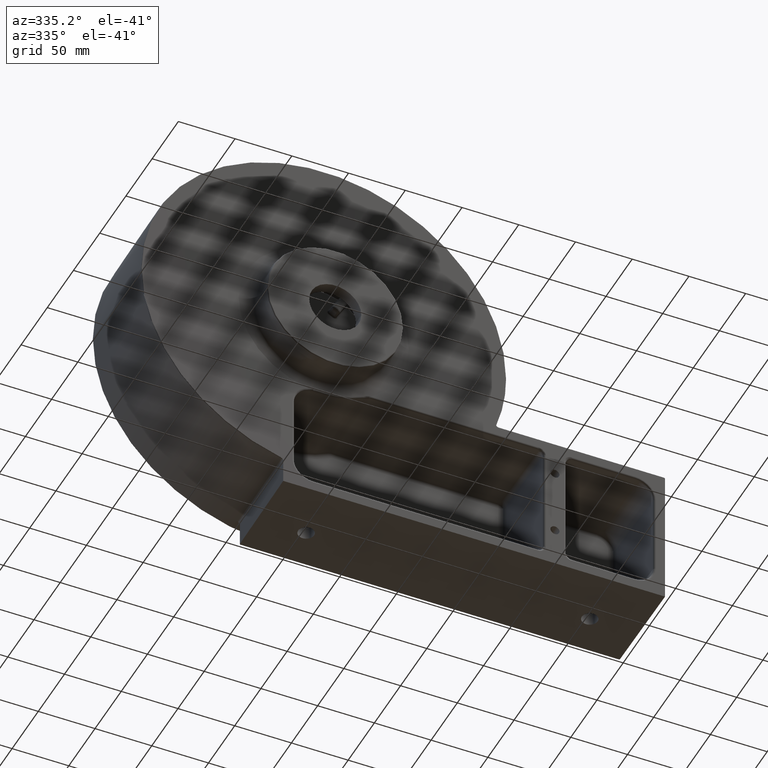
[diagram: clean part render]
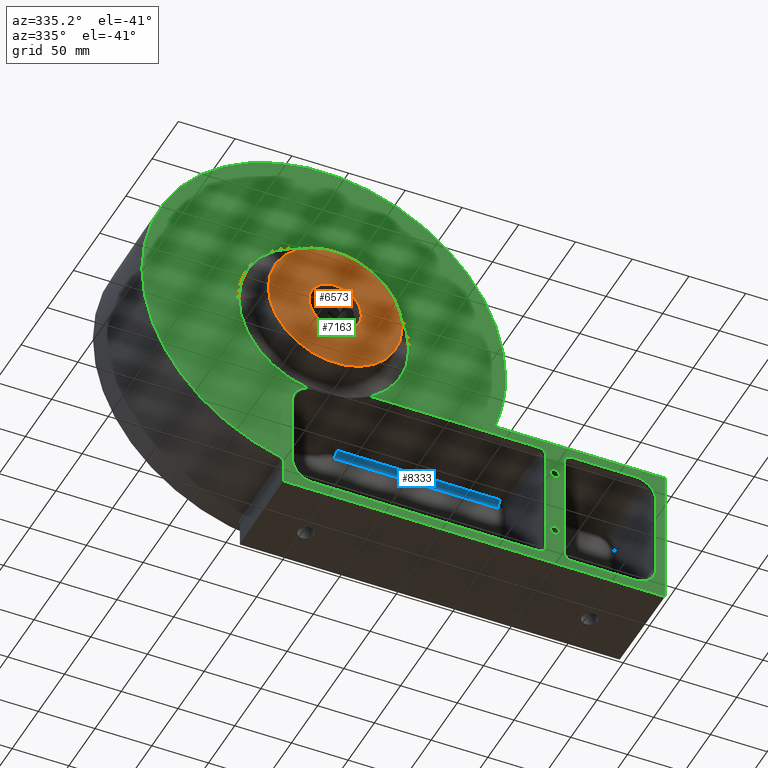
[diagram: same view with three faces highlighted in distinct colors, each labeled with its STEP entity id]
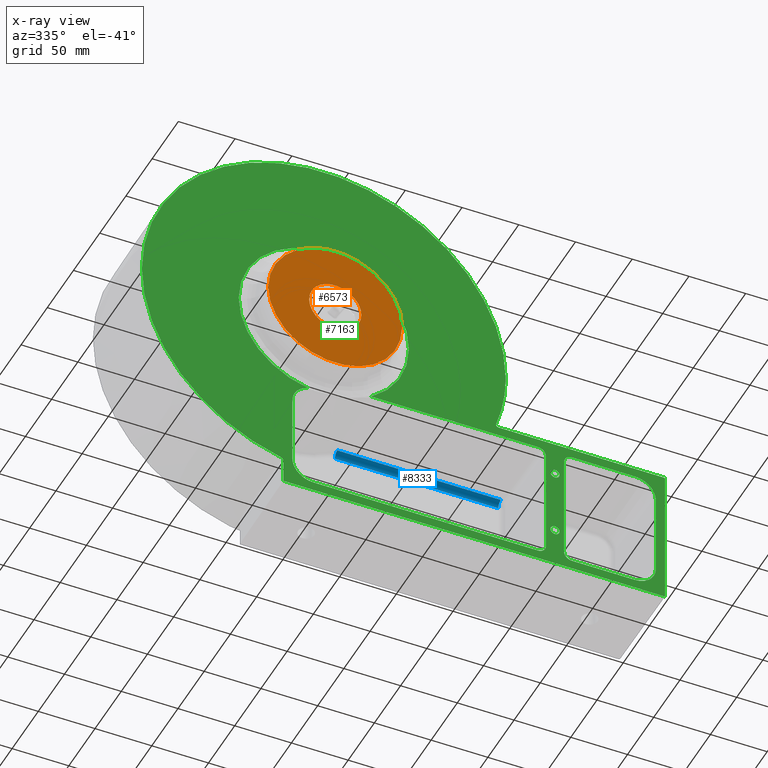
[diagram: x-ray of the same camera — body ghosted, the three highlighted faces saturated]
A machine part, auxiliary view with three faces highlighted in distinct colors.
The next image is the same camera in x-ray (body ghosted, the three faces saturated) — at least one of them is partly hidden behind the body in this view.
Their STEP definitions:

[orange] entity #6573 — the highlighted planar face has unit normal (0, -1, 0).
#44 = PLANE ( 'NONE',  #1723 ) ;
#246 = AXIS2_PLACEMENT_3D ( 'NONE', #4752, #4743, #4733 ) ;
#455 = AXIS2_PLACEMENT_3D ( 'NONE', #3622, #6672, #9249 ) ;
#679 = VERTEX_POINT ( 'NONE', #8006 ) ;
#762 = AXIS2_PLACEMENT_3D ( 'NONE', #7761, #7740, #7731 ) ;
#1368 = CARTESIAN_POINT ( 'NONE',  ( 23.00000000000001421, 2.793634364560912921E-15, 2.816687638038912352E-15 ) ) ;
#1396 = VERTEX_POINT ( 'NONE', #1368 ) ;
#1516 = CIRCLE ( 'NONE', #762, 23.00000000000000000 ) ;
#1674 = EDGE_CURVE ( 'NONE', #5301, #679, #7813, .T. ) ;
#1723 = AXIS2_PLACEMENT_3D ( 'NONE', #3408, #6464, #9089 ) ;
#2987 = EDGE_CURVE ( 'NONE', #1396, #3332, #1516, .T. ) ;
#3266 = DIRECTION ( 'NONE',  ( -1.000000000000000000, -1.214623636765614121E-16, 0.0000000000000000000 ) ) ;
#3269 = DIRECTION ( 'NONE',  ( -1.214623636765614367E-16, 1.000000000000000000, -0.0000000000000000000 ) ) ;
#3276 = CARTESIAN_POINT ( 'NONE',  ( 1.425374463786146781E-14, 1.387778780781445676E-14, 0.0000000000000000000 ) ) ;
#3332 = VERTEX_POINT ( 'NONE', #6638 ) ;
#3408 = CARTESIAN_POINT ( 'NONE',  ( -58.99999999999998579, -6.684395046983998997E-16, 0.0000000000000000000 ) ) ;
#3622 = CARTESIAN_POINT ( 'NONE',  ( 1.425374463786146781E-14, 0.0000000000000000000, 0.0000000000000000000 ) ) ;
#4156 = FACE_BOUND ( 'NONE', #9476, .T. ) ;
#4321 = EDGE_CURVE ( 'NONE', #679, #5301, #4538, .T. ) ;
#4538 = CIRCLE ( 'NONE', #8579, 59.00000000000000000 ) ;
#4733 = DIRECTION ( 'NONE',  ( -1.000000000000000000, -1.214623636765614121E-16, 0.0000000000000000000 ) ) ;
#4743 = DIRECTION ( 'NONE',  ( -1.214623636765614367E-16, 1.000000000000000000, -0.0000000000000000000 ) ) ;
#4752 = CARTESIAN_POINT ( 'NONE',  ( 1.425374463786146781E-14, 1.387778780781445676E-14, 0.0000000000000000000 ) ) ;
#4761 = ORIENTED_EDGE ( 'NONE', *, *, #4321, .F. ) ;
#4832 = ORIENTED_EDGE ( 'NONE', *, *, #1674, .F. ) ;
#4840 = ORIENTED_EDGE ( 'NONE', *, *, #2987, .T. ) ;
#4971 = ORIENTED_EDGE ( 'NONE', *, *, #5424, .T. ) ;
#5071 = CIRCLE ( 'NONE', #455, 23.00000000000000000 ) ;
#5301 = VERTEX_POINT ( 'NONE', #8573 ) ;
#5424 = EDGE_CURVE ( 'NONE', #3332, #1396, #5071, .T. ) ;
#6464 = DIRECTION ( 'NONE',  ( 1.214623636765614367E-16, -1.000000000000000000, 0.0000000000000000000 ) ) ;
#6573 = ADVANCED_FACE ( 'NONE', ( #4156, #7184 ), #44, .T. ) ;
#6638 = CARTESIAN_POINT ( 'NONE',  ( -22.99999999999998579, -2.793634364560912921E-15, 0.0000000000000000000 ) ) ;
#6672 = DIRECTION ( 'NONE',  ( -1.214623636765614367E-16, 1.000000000000000000, -0.0000000000000000000 ) ) ;
#7041 = EDGE_LOOP ( 'NONE', ( #4832, #4761 ) ) ;
#7184 = FACE_OUTER_BOUND ( 'NONE', #7041, .T. ) ;
#7731 = DIRECTION ( 'NONE',  ( -1.000000000000000000, -1.214623636765614367E-16, 0.0000000000000000000 ) ) ;
#7740 = DIRECTION ( 'NONE',  ( -1.214623636765614367E-16, 1.000000000000000000, -0.0000000000000000000 ) ) ;
#7761 = CARTESIAN_POINT ( 'NONE',  ( 1.425374463786146781E-14, 0.0000000000000000000, 0.0000000000000000000 ) ) ;
#7813 = CIRCLE ( 'NONE', #246, 59.00000000000000000 ) ;
#8006 = CARTESIAN_POINT ( 'NONE',  ( 59.00000000000001421, 2.104406726473158229E-14, 7.286648454926750781E-15 ) ) ;
#8573 = CARTESIAN_POINT ( 'NONE',  ( -58.99999999999998579, 6.711508350897332014E-15, 0.0000000000000000000 ) ) ;
#8579 = AXIS2_PLACEMENT_3D ( 'NONE', #3276, #3269, #3266 ) ;
#9089 = DIRECTION ( 'NONE',  ( 1.000000000000000000, 1.214623636765614367E-16, 0.0000000000000000000 ) ) ;
#9249 = DIRECTION ( 'NONE',  ( -1.000000000000000000, -1.214623636765614367E-16, 0.0000000000000000000 ) ) ;
#9476 = EDGE_LOOP ( 'NONE', ( #4971, #4840 ) ) ;

[blue] entity #8333 — the highlighted cylindrical surface (edge-blend (fillet) strip) has radius 5 mm, axis along (1, 0, 0).
#23 = CARTESIAN_POINT ( 'NONE',  ( -2.280048247810273157E-15, 88.79939097275266136, -71.01438694537539220 ) ) ;
#828 = AXIS2_PLACEMENT_3D ( 'NONE', #5356, #8201, #1322 ) ;
#983 = VERTEX_POINT ( 'NONE', #7218 ) ;
#1010 = CIRCLE ( 'NONE', #2427, 5.000000000000004441 ) ;
#1217 = VERTEX_POINT ( 'NONE', #6702 ) ;
#1322 = DIRECTION ( 'NONE',  ( 0.0000000000000000000, 1.000000000000000000, 0.0000000000000000000 ) ) ;
#1416 = VERTEX_POINT ( 'NONE', #5930 ) ;
#1468 = DIRECTION ( 'NONE',  ( -1.000000000000000000, -1.242786967863980845E-16, -1.199255022777854802E-16 ) ) ;
#2427 = AXIS2_PLACEMENT_3D ( 'NONE', #3875, #8978, #2472 ) ;
#2472 = DIRECTION ( 'NONE',  ( -6.938893903907222067E-15, 0.0000000000000000000, 1.000000000000000000 ) ) ;
#3381 = DIRECTION ( 'NONE',  ( 1.000000000000000000, 1.242786967863980845E-16, 1.199255022777854802E-16 ) ) ;
#3441 = DIRECTION ( 'NONE',  ( 1.000000000000000000, 1.242786967863980845E-16, 1.199255022777854802E-16 ) ) ;
#3472 = LINE ( 'NONE', #3481, #9553 ) ;
#3481 = CARTESIAN_POINT ( 'NONE',  ( 274.2417837622144816, 88.93027571429206546, -66.01610032049757137 ) ) ;
#3875 = CARTESIAN_POINT ( 'NONE',  ( 43.01581697574827245, 88.79939097275266136, -71.01438694537537799 ) ) ;
#4038 = VERTEX_POINT ( 'NONE', #4468 ) ;
#4135 = FACE_OUTER_BOUND ( 'NONE', #7939, .T. ) ;
#4298 = EDGE_CURVE ( 'NONE', #1416, #4038, #3472, .T. ) ;
#4468 = CARTESIAN_POINT ( 'NONE',  ( 186.9856130546246220, 88.93027571429205125, -66.01610032049758559 ) ) ;
#4617 = AXIS2_PLACEMENT_3D ( 'NONE', #23, #3381, #6441 ) ;
#5356 = CARTESIAN_POINT ( 'NONE',  ( 186.9856130546246220, 88.79939097275268978, -71.01438694537536378 ) ) ;
#5437 = CIRCLE ( 'NONE', #828, 5.000000000000004441 ) ;
#5485 = LINE ( 'NONE', #8310, #9482 ) ;
#5930 = CARTESIAN_POINT ( 'NONE',  ( 43.01581697574823693, 88.93027571429202283, -66.01610032049758559 ) ) ;
#6319 = EDGE_CURVE ( 'NONE', #1416, #983, #1010, .T. ) ;
#6381 = ORIENTED_EDGE ( 'NONE', *, *, #9444, .F. ) ;
#6394 = ORIENTED_EDGE ( 'NONE', *, *, #6972, .T. ) ;
#6426 = ORIENTED_EDGE ( 'NONE', *, *, #4298, .F. ) ;
#6441 = DIRECTION ( 'NONE',  ( -1.242786967863979859E-16, 1.000000000000000000, 0.0000000000000000000 ) ) ;
#6459 = ORIENTED_EDGE ( 'NONE', *, *, #6319, .T. ) ;
#6702 = CARTESIAN_POINT ( 'NONE',  ( 186.9856130546245936, 93.79939097275267557, -71.01438694537537799 ) ) ;
#6972 = EDGE_CURVE ( 'NONE', #1217, #4038, #5437, .T. ) ;
#7169 = CYLINDRICAL_SURFACE ( 'NONE', #4617, 5.000000000000004441 ) ;
#7218 = CARTESIAN_POINT ( 'NONE',  ( 43.01581697574827245, 93.79939097275266136, -71.01438694537539220 ) ) ;
#7939 = EDGE_LOOP ( 'NONE', ( #6381, #6394, #6426, #6459 ) ) ;
#8201 = DIRECTION ( 'NONE',  ( 1.000000000000000000, 1.242786967863980845E-16, 1.199255022777854802E-16 ) ) ;
#8310 = CARTESIAN_POINT ( 'NONE',  ( 43.01581697574818719, 93.79939097275266136, -71.01438694537539220 ) ) ;
#8333 = ADVANCED_FACE ( 'NONE', ( #4135 ), #7169, .F. ) ;
#8978 = DIRECTION ( 'NONE',  ( -1.000000000000000000, 0.0000000000000000000, -6.941272504632407803E-15 ) ) ;
#9444 = EDGE_CURVE ( 'NONE', #1217, #983, #5485, .T. ) ;
#9482 = VECTOR ( 'NONE', #1468, 1000.000000000000000 ) ;
#9553 = VECTOR ( 'NONE', #3441, 1000.000000000000000 ) ;

[green] entity #7163 — the highlighted planar face has unit normal (-0, 1, 0).
#20 = CARTESIAN_POINT ( 'NONE',  ( 213.8427292082037354, 21.79939097275268622, -169.8990545540107178 ) ) ;
#45 = AXIS2_PLACEMENT_3D ( 'NONE', #7825, #7821, #7809 ) ;
#87 = CARTESIAN_POINT ( 'NONE',  ( -27.69009750405787429, 21.79939097275265780, -1.549505232012129051E-15 ) ) ;
#119 = AXIS2_PLACEMENT_3D ( 'NONE', #6536, #1875, #5076 ) ;
#215 = EDGE_CURVE ( 'NONE', #8840, #9178, #802, .T. ) ;
#285 =( BOUNDED_CURVE ( )  B_SPLINE_CURVE ( 3, ( #861, #4131, #7166, #20 ),
 .UNSPECIFIED., .F., .T. ) 
 B_SPLINE_CURVE_WITH_KNOTS ( ( 4, 4 ),
 ( 5.498129760120304965, 6.283185307179586232 ),
 .UNSPECIFIED. ) 
 CURVE ( )  GEOMETRIC_REPRESENTATION_ITEM ( )  RATIONAL_B_SPLINE_CURVE ( ( 1.000000000000000000, 0.9492967171685287031, 0.9492967171685287031, 1.000000000000000000 ) ) 
 REPRESENTATION_ITEM ( '' )  );
#294 = EDGE_CURVE ( 'NONE', #5562, #725, #5063, .T. ) ;
#313 = CARTESIAN_POINT ( 'NONE',  ( 211.7934700203711316, 21.79939097275268978, -68.97768550218000883 ) ) ;
#424 = EDGE_CURVE ( 'NONE', #483, #1905, #8390, .T. ) ;
#429 = VECTOR ( 'NONE', #5892, 1000.000000000000000 ) ;
#473 = EDGE_CURVE ( 'NONE', #5543, #8919, #8375, .T. ) ;
#483 = VERTEX_POINT ( 'NONE', #8352 ) ;
#564 = CARTESIAN_POINT ( 'NONE',  ( -35.74178376221449582, 21.79939097275265780, -158.3329186203524159 ) ) ;
#720 = EDGE_CURVE ( 'NONE', #5512, #9550, #5982, .T. ) ;
#725 = VERTEX_POINT ( 'NONE', #7807 ) ;
#744 = VERTEX_POINT ( 'NONE', #7785 ) ;
#802 =( BOUNDED_CURVE ( )  B_SPLINE_CURVE ( 3, ( #9424, #9410, #9404, #9402 ),
 .UNSPECIFIED., .F., .T. ) 
 B_SPLINE_CURVE_WITH_KNOTS ( ( 4, 4 ),
 ( 5.497825219993087487, 7.068545394366056556 ),
 .UNSPECIFIED. ) 
 CURVE ( )  GEOMETRIC_REPRESENTATION_ITEM ( )  RATIONAL_B_SPLINE_CURVE ( ( 1.000000000000000000, 0.8047558030806230001, 0.8047558030806230001, 1.000000000000000000 ) ) 
 REPRESENTATION_ITEM ( '' )  );
#861 = CARTESIAN_POINT ( 'NONE',  ( 218.7910712952000551, 21.79939097275268978, -171.9483137418432932 ) ) ;
#872 = CARTESIAN_POINT ( 'NONE',  ( 1.160593908360143360E-14, 21.79939097275267201, 0.0000000000000000000 ) ) ;
#919 = CARTESIAN_POINT ( 'NONE',  ( -2.709199900830871636E-15, 21.79939097275266136, 0.0000000000000000000 ) ) ;
#976 = VERTEX_POINT ( 'NONE', #7262 ) ;
#1061 = CARTESIAN_POINT ( 'NONE',  ( 211.7934700203711600, 21.79939097275268978, -164.9507124670143980 ) ) ;
#1071 = VERTEX_POINT ( 'NONE', #7027 ) ;
#1118 = EDGE_CURVE ( 'NONE', #5493, #5208, #7958, .T. ) ;
#1140 = AXIS2_PLACEMENT_3D ( 'NONE', #6490, #6482, #6477 ) ;
#1173 = EDGE_CURVE ( 'NONE', #1464, #2636, #5469, .T. ) ;
#1229 =( BOUNDED_CURVE ( )  B_SPLINE_CURVE ( 3, ( #2186, #2181, #2178, #2165 ),
 .UNSPECIFIED., .F., .T. ) 
 B_SPLINE_CURVE_WITH_KNOTS ( ( 4, 4 ),
 ( 5.498129760120304077, 6.283185307179586232 ),
 .UNSPECIFIED. ) 
 CURVE ( )  GEOMETRIC_REPRESENTATION_ITEM ( )  RATIONAL_B_SPLINE_CURVE ( ( 1.000000000000000000, 0.9492967171685284811, 0.9492967171685284811, 1.000000000000000000 ) ) 
 REPRESENTATION_ITEM ( '' )  );
#1268 = DIRECTION ( 'NONE',  ( 0.0000000000000000000, 0.0000000000000000000, -1.000000000000000000 ) ) ;
#1419 = CARTESIAN_POINT ( 'NONE',  ( -27.69009750405786718, 21.79939097275265780, -153.5000000000000000 ) ) ;
#1435 = EDGE_CURVE ( 'NONE', #8919, #8840, #5901, .T. ) ;
#1448 = EDGE_CURVE ( 'NONE', #725, #744, #5890, .T. ) ;
#1461 = EDGE_CURVE ( 'NONE', #7784, #4238, #8586, .T. ) ;
#1464 = VERTEX_POINT ( 'NONE', #5845 ) ;
#1579 = CARTESIAN_POINT ( 'NONE',  ( 195.6900975040578601, 21.79939097275268622, -69.30750377077103508 ) ) ;
#1671 = CIRCLE ( 'NONE', #6141, 4.000000000000003553 ) ;
#1689 = DIRECTION ( 'NONE',  ( 7.631260653810491588E-16, 9.484031288928840776E-32, -1.000000000000000000 ) ) ;
#1719 = CIRCLE ( 'NONE', #7402, 160.3160192545639120 ) ;
#1731 = CARTESIAN_POINT ( 'NONE',  ( 211.7934700203711031, 21.79939097275268978, -65.20782233517792292 ) ) ;
#1764 = FACE_OUTER_BOUND ( 'NONE', #4074, .T. ) ;
#1787 = DIRECTION ( 'NONE',  ( 1.242786967863980845E-16, -1.000000000000000000, 0.0000000000000000000 ) ) ;
#1797 = DIRECTION ( 'NONE',  ( -1.000000000000000000, -1.387778780781444936E-16, 0.0000000000000000000 ) ) ;
#1824 = VERTEX_POINT ( 'NONE', #4066 ) ;
#1863 = CIRCLE ( 'NONE', #6294, 75.00000000000004263 ) ;
#1875 = DIRECTION ( 'NONE',  ( -1.214623636765614367E-16, 1.000000000000000000, -0.0000000000000000000 ) ) ;
#1905 = VERTEX_POINT ( 'NONE', #3885 ) ;
#1926 = AXIS2_PLACEMENT_3D ( 'NONE', #8531, #1787, #4987 ) ;
#1945 = CARTESIAN_POINT ( 'NONE',  ( 195.6900975040578601, 21.79939097275268622, -69.30750377077103508 ) ) ;
#1949 = CARTESIAN_POINT ( 'NONE',  ( 195.6900975040579169, 21.79939097275268978, -67.42639654655779680 ) ) ;
#1952 = CIRCLE ( 'NONE', #7583, 75.00000000000004263 ) ;
#1958 = CARTESIAN_POINT ( 'NONE',  ( 194.9705264957627833, 21.79939097275268978, -65.68884986331221398 ) ) ;
#1960 = CARTESIAN_POINT ( 'NONE',  ( 193.6408383162252846, 21.79939097275268622, -64.35916168377472957 ) ) ;
#2065 = VECTOR ( 'NONE', #8365, 1000.000000000000000 ) ;
#2165 = CARTESIAN_POINT ( 'NONE',  ( 193.6408383162252846, 21.79939097275268622, -64.35916168377472957 ) ) ;
#2178 = CARTESIAN_POINT ( 'NONE',  ( 192.3111501366877860, 21.79939097275268622, -63.02947350423725226 ) ) ;
#2179 = CARTESIAN_POINT ( 'NONE',  ( 75.00000000000005684, 21.79939097275265780, 9.184850993605153466E-15 ) ) ;
#2181 = CARTESIAN_POINT ( 'NONE',  ( 190.5736034534422458, 21.79939097275268622, -62.30990249594214703 ) ) ;
#2186 = CARTESIAN_POINT ( 'NONE',  ( 188.6924962292289649, 21.79939097275268622, -62.30990249594212571 ) ) ;
#2206 = DIRECTION ( 'NONE',  ( 1.242786967863980845E-16, -1.000000000000000000, 0.0000000000000000000 ) ) ;
#2260 = EDGE_CURVE ( 'NONE', #8850, #976, #1863, .T. ) ;
#2280 = ORIENTED_EDGE ( 'NONE', *, *, #9511, .T. ) ;
#2290 = AXIS2_PLACEMENT_3D ( 'NONE', #3679, #6720, #9286 ) ;
#2304 = CARTESIAN_POINT ( 'NONE',  ( 292.6900975040578601, 21.79939097275269688, -153.4999999999999432 ) ) ;
#2389 = ORIENTED_EDGE ( 'NONE', *, *, #6847, .T. ) ;
#2391 = CARTESIAN_POINT ( 'NONE',  ( -160.3160192545639120, 21.79939097275265070, 0.0000000000000000000 ) ) ;
#2402 = ORIENTED_EDGE ( 'NONE', *, *, #2953, .T. ) ;
#2403 = EDGE_CURVE ( 'NONE', #3374, #1824, #1229, .T. ) ;
#2444 = ORIENTED_EDGE ( 'NONE', *, *, #8836, .T. ) ;
#2449 = CARTESIAN_POINT ( 'NONE',  ( 207.7417837622144816, 21.79939097275268622, -84.99999999999998579 ) ) ;
#2461 = CIRCLE ( 'NONE', #8032, 18.44831374184336781 ) ;
#2463 = DIRECTION ( 'NONE',  ( 1.000000000000000000, 0.0000000000000000000, 0.0000000000000000000 ) ) ;
#2468 = DIRECTION ( 'NONE',  ( 1.242786967863980845E-16, -1.000000000000000000, 0.0000000000000000000 ) ) ;
#2475 = ORIENTED_EDGE ( 'NONE', *, *, #6867, .T. ) ;
#2476 = CARTESIAN_POINT ( 'NONE',  ( 203.7417837622144816, 21.79939097275268622, -84.99999999999998579 ) ) ;
#2502 = CARTESIAN_POINT ( 'NONE',  ( -9.241783762214502929, 21.79939097275266136, -171.9483137418433500 ) ) ;
#2521 = VERTEX_POINT ( 'NONE', #1579 ) ;
#2542 = LINE ( 'NONE', #5686, #4902 ) ;
#2589 = FACE_BOUND ( 'NONE', #5177, .T. ) ;
#2616 = ORIENTED_EDGE ( 'NONE', *, *, #8852, .F. ) ;
#2636 = VERTEX_POINT ( 'NONE', #564 ) ;
#2642 = ORIENTED_EDGE ( 'NONE', *, *, #720, .F. ) ;
#2643 = DIRECTION ( 'NONE',  ( -1.000000000000000000, -1.880630934893751758E-16, 0.0000000000000000000 ) ) ;
#2650 = ORIENTED_EDGE ( 'NONE', *, *, #6142, .T. ) ;
#2673 = CARTESIAN_POINT ( 'NONE',  ( 195.6900975040578032, 21.79939097275268267, -169.0503939026074818 ) ) ;
#2675 = ORIENTED_EDGE ( 'NONE', *, *, #3495, .F. ) ;
#2680 = CARTESIAN_POINT ( 'NONE',  ( 207.7417837622145100, 21.79939097275268622, -145.0000000000000000 ) ) ;
#2697 = DIRECTION ( 'NONE',  ( -1.000000000000000000, -1.242786967863980845E-16, -1.925929944387235853E-34 ) ) ;
#2819 = DIRECTION ( 'NONE',  ( 1.000000000000000000, 1.242786967863980845E-16, 1.199255022777854802E-16 ) ) ;
#2859 = ORIENTED_EDGE ( 'NONE', *, *, #4650, .F. ) ;
#2925 = DIRECTION ( 'NONE',  ( -1.000000000000000000, -1.387778780781444936E-16, 0.0000000000000000000 ) ) ;
#2929 = DIRECTION ( 'NONE',  ( -1.214623636765614367E-16, 1.000000000000000000, -0.0000000000000000000 ) ) ;
#2938 = CARTESIAN_POINT ( 'NONE',  ( 1.160593908360143518E-14, 21.79939097275264359, 0.0000000000000000000 ) ) ;
#2945 = CARTESIAN_POINT ( 'NONE',  ( 213.8427292082037354, 21.79939097275268622, -169.8990545540107178 ) ) ;
#2953 = EDGE_CURVE ( 'NONE', #3287, #6416, #7056, .T. ) ;
#2997 = ORIENTED_EDGE ( 'NONE', *, *, #7144, .T. ) ;
#3104 = VERTEX_POINT ( 'NONE', #7552 ) ;
#3155 = VERTEX_POINT ( 'NONE', #7416 ) ;
#3160 = DIRECTION ( 'NONE',  ( -1.000000000000000000, -1.387778780781444936E-16, 0.0000000000000000000 ) ) ;
#3205 = ORIENTED_EDGE ( 'NONE', *, *, #1448, .T. ) ;
#3218 = VECTOR ( 'NONE', #3256, 1000.000000000000000 ) ;
#3256 = DIRECTION ( 'NONE',  ( 1.000000000000000000, 1.242786967863980845E-16, 1.199255022777854802E-16 ) ) ;
#3257 = CARTESIAN_POINT ( 'NONE',  ( 4.763346452874829460E-15, 21.79939097275266136, -62.30990249594214703 ) ) ;
#3263 = LINE ( 'NONE', #3257, #3218 ) ;
#3277 = VECTOR ( 'NONE', #3651, 1000.000000000000000 ) ;
#3287 = VERTEX_POINT ( 'NONE', #6753 ) ;
#3304 = ORIENTED_EDGE ( 'NONE', *, *, #294, .T. ) ;
#3314 = EDGE_LOOP ( 'NONE', ( #2475, #2444, #2389, #2402, #2280, #3304, #3205, #4966, #5032 ) ) ;
#3374 = VERTEX_POINT ( 'NONE', #6567 ) ;
#3418 = EDGE_CURVE ( 'NONE', #3104, #7580, #6908, .T. ) ;
#3445 = DIRECTION ( 'NONE',  ( -5.595882180570347891E-17, -6.954489447715104507E-33, 1.000000000000000000 ) ) ;
#3495 = EDGE_CURVE ( 'NONE', #9581, #4651, #1671, .T. ) ;
#3651 = DIRECTION ( 'NONE',  ( -2.531555802407394068E-16, -3.146184559652352102E-32, 1.000000000000000000 ) ) ;
#3663 = VERTEX_POINT ( 'NONE', #5718 ) ;
#3679 = CARTESIAN_POINT ( 'NONE',  ( -9.241783762214506481, 21.79939097275266136, -91.50000000000000000 ) ) ;
#3885 = CARTESIAN_POINT ( 'NONE',  ( 151.5656185280416821, 21.79939097275268978, -52.24068634543247214 ) ) ;
#3921 = CARTESIAN_POINT ( 'NONE',  ( 160.3160192545639120, 21.79939097275269333, 1.966366498742345683E-14 ) ) ;
#3922 = CARTESIAN_POINT ( 'NONE',  ( 299.7418218391503615, 21.79939097275270043, -54.25821623778549707 ) ) ;
#4054 = ORIENTED_EDGE ( 'NONE', *, *, #1461, .F. ) ;
#4066 = CARTESIAN_POINT ( 'NONE',  ( 193.6408383162252846, 21.79939097275268622, -64.35916168377472957 ) ) ;
#4074 = EDGE_LOOP ( 'NONE', ( #5592, #7936, #5577, #8509, #8765, #4054, #7630, #6481, #9365, #7094 ) ) ;
#4087 = CIRCLE ( 'NONE', #9223, 75.00000000000004263 ) ;
#4130 = CARTESIAN_POINT ( 'NONE',  ( 195.6900975040578601, 21.79939097275268622, -165.2805307356054527 ) ) ;
#4131 = CARTESIAN_POINT ( 'NONE',  ( 216.9099640709868311, 21.79939097275268978, -171.9483137418433216 ) ) ;
#4141 = DIRECTION ( 'NONE',  ( -1.214623636765614367E-16, 1.000000000000000000, -0.0000000000000000000 ) ) ;
#4178 = DIRECTION ( 'NONE',  ( -1.242786967863980845E-16, 1.000000000000000000, 0.0000000000000000000 ) ) ;
#4238 = VERTEX_POINT ( 'NONE', #3921 ) ;
#4322 = CARTESIAN_POINT ( 'NONE',  ( 199.7417837622144532, 21.79939097275268622, -84.99999999999998579 ) ) ;
#4326 = EDGE_CURVE ( 'NONE', #7580, #3374, #3263, .T. ) ;
#4643 = VERTEX_POINT ( 'NONE', #2502 ) ;
#4650 = EDGE_CURVE ( 'NONE', #4651, #9581, #8085, .T. ) ;
#4651 = VERTEX_POINT ( 'NONE', #2449 ) ;
#4700 = CARTESIAN_POINT ( 'NONE',  ( 1.160593908360143518E-14, 21.79939097275264359, 0.0000000000000000000 ) ) ;
#4762 = VERTEX_POINT ( 'NONE', #2179 ) ;
#4828 = EDGE_CURVE ( 'NONE', #1824, #2521, #5321, .T. ) ;
#4902 = VECTOR ( 'NONE', #8480, 1000.000000000000000 ) ;
#4936 = CARTESIAN_POINT ( 'NONE',  ( 214.6913898596069714, 21.79939097275268978, -62.30990249594212571 ) ) ;
#4965 = FACE_BOUND ( 'NONE', #6833, .T. ) ;
#4966 = ORIENTED_EDGE ( 'NONE', *, *, #8231, .T. ) ;
#4978 =( BOUNDED_CURVE ( )  B_SPLINE_CURVE ( 3, ( #8488, #1731, #4936, #7890 ),
 .UNSPECIFIED., .F., .T. ) 
 B_SPLINE_CURVE_WITH_KNOTS ( ( 4, 4 ),
 ( 2.356537106530513626, 3.926648200649074827 ),
 .UNSPECIFIED. ) 
 CURVE ( )  GEOMETRIC_REPRESENTATION_ITEM ( )  RATIONAL_B_SPLINE_CURVE ( ( 1.000000000000000000, 0.8048993373437796084, 0.8048993373437796084, 1.000000000000000000 ) ) 
 REPRESENTATION_ITEM ( '' )  );
#4987 = DIRECTION ( 'NONE',  ( 1.000000000000000000, 0.0000000000000000000, 0.0000000000000000000 ) ) ;
#4988 = ORIENTED_EDGE ( 'NONE', *, *, #4828, .T. ) ;
#5023 = ORIENTED_EDGE ( 'NONE', *, *, #2403, .T. ) ;
#5032 = ORIENTED_EDGE ( 'NONE', *, *, #1118, .T. ) ;
#5063 = CIRCLE ( 'NONE', #9291, 18.44831374184335715 ) ;
#5076 = DIRECTION ( 'NONE',  ( -1.000000000000000000, -1.298477956757841112E-16, 0.0000000000000000000 ) ) ;
#5094 = VECTOR ( 'NONE', #2819, 1000.000000000000000 ) ;
#5117 = ORIENTED_EDGE ( 'NONE', *, *, #4326, .T. ) ;
#5167 = ORIENTED_EDGE ( 'NONE', *, *, #3418, .T. ) ;
#5177 = EDGE_LOOP ( 'NONE', ( #2859, #2675 ) ) ;
#5186 = ORIENTED_EDGE ( 'NONE', *, *, #8703, .T. ) ;
#5208 = VERTEX_POINT ( 'NONE', #1061 ) ;
#5232 = ORIENTED_EDGE ( 'NONE', *, *, #7476, .T. ) ;
#5274 = AXIS2_PLACEMENT_3D ( 'NONE', #919, #4178, #7208 ) ;
#5291 = ORIENTED_EDGE ( 'NONE', *, *, #2260, .T. ) ;
#5308 = LINE ( 'NONE', #8170, #6665 ) ;
#5321 =( BOUNDED_CURVE ( )  B_SPLINE_CURVE ( 3, ( #1960, #1958, #1949, #1945 ),
 .UNSPECIFIED., .F., .T. ) 
 B_SPLINE_CURVE_WITH_KNOTS ( ( 4, 4 ),
 ( 0.0000000000000000000, 0.7850555470592796015 ),
 .UNSPECIFIED. ) 
 CURVE ( )  GEOMETRIC_REPRESENTATION_ITEM ( )  RATIONAL_B_SPLINE_CURVE ( ( 1.000000000000000000, 0.9492967171685289252, 0.9492967171685289252, 1.000000000000000000 ) ) 
 REPRESENTATION_ITEM ( '' )  );
#5332 = ORIENTED_EDGE ( 'NONE', *, *, #9346, .T. ) ;
#5431 = ORIENTED_EDGE ( 'NONE', *, *, #8288, .T. ) ;
#5433 = CARTESIAN_POINT ( 'NONE',  ( -35.74178376221449582, 21.79939097275265780, -180.0000000000000000 ) ) ;
#5469 = B_SPLINE_CURVE_WITH_KNOTS ( 'NONE', 3,
 ( #6885, #6853, #6849, #6841, #6839, #6827, #6815, #6814, #6807, #6800, #6795, #6791, #6788, #6776 ),
 .UNSPECIFIED., .F., .F.,
 ( 4, 2, 2, 2, 2, 2, 4 ),
 ( -8.944271911821978060E-06, 0.0008464367220503599305, 0.001701817716012541792, 0.002129508212993656141, 0.002557198709974770490, 0.002984889206955885273, 0.003412579703936999623 ),
 .UNSPECIFIED. ) ;
#5493 = VERTEX_POINT ( 'NONE', #2945 ) ;
#5512 = VERTEX_POINT ( 'NONE', #8783 ) ;
#5543 = VERTEX_POINT ( 'NONE', #5433 ) ;
#5562 = VERTEX_POINT ( 'NONE', #2304 ) ;
#5577 = ORIENTED_EDGE ( 'NONE', *, *, #8309, .T. ) ;
#5592 = ORIENTED_EDGE ( 'NONE', *, *, #1435, .T. ) ;
#5661 = LINE ( 'NONE', #8463, #8754 ) ;
#5686 = CARTESIAN_POINT ( 'NONE',  ( 3.096987569588140755E-14, 21.79939097275266136, -171.9483137418433500 ) ) ;
#5700 = CARTESIAN_POINT ( 'NONE',  ( 300.7417837622145385, 21.79939097275270043, -55.25817816084965983 ) ) ;
#5718 = CARTESIAN_POINT ( 'NONE',  ( 195.6900975040578601, 21.79939097275268622, -164.9507124670143980 ) ) ;
#5727 = FACE_BOUND ( 'NONE', #8598, .T. ) ;
#5754 = CARTESIAN_POINT ( 'NONE',  ( -14.01285297686749232, 21.79939097275264359, -73.67930477039466552 ) ) ;
#5761 = CARTESIAN_POINT ( 'NONE',  ( 1.160593908360143518E-14, 21.79939097275264359, 0.0000000000000000000 ) ) ;
#5800 = CARTESIAN_POINT ( 'NONE',  ( 192.7921776648220487, 21.79939097275268267, -171.9483137418432932 ) ) ;
#5845 = CARTESIAN_POINT ( 'NONE',  ( -37.75931365456748523, 21.79939097275266846, -155.8058415527662248 ) ) ;
#5865 = DIRECTION ( 'NONE',  ( -1.000000000000000000, -1.298477956757841112E-16, 0.0000000000000000000 ) ) ;
#5868 = DIRECTION ( 'NONE',  ( -1.214623636765614367E-16, 1.000000000000000000, -0.0000000000000000000 ) ) ;
#5876 = CARTESIAN_POINT ( 'NONE',  ( 1.160593908360143360E-14, 21.79939097275267201, 0.0000000000000000000 ) ) ;
#5879 = DIRECTION ( 'NONE',  ( -1.000000000000000000, -1.242786967863980845E-16, -1.958674375096039709E-16 ) ) ;
#5887 = CARTESIAN_POINT ( 'NONE',  ( 3.096987569588140755E-14, 21.79939097275266136, -171.9483137418433500 ) ) ;
#5890 = LINE ( 'NONE', #5887, #6293 ) ;
#5892 = DIRECTION ( 'NONE',  ( 0.0000000000000000000, -0.0000000000000000000, 1.000000000000000000 ) ) ;
#5896 = CARTESIAN_POINT ( 'NONE',  ( 300.7417837622145385, 21.79939097275270043, -180.0000000000000000 ) ) ;
#5901 = LINE ( 'NONE', #5896, #429 ) ;
#5904 = ORIENTED_EDGE ( 'NONE', *, *, #6081, .T. ) ;
#5982 = CIRCLE ( 'NONE', #45, 4.000000000000003553 ) ;
#6081 = EDGE_CURVE ( 'NONE', #1071, #4643, #2542, .T. ) ;
#6094 = EDGE_CURVE ( 'NONE', #1464, #7784, #1719, .T. ) ;
#6142 = EDGE_CURVE ( 'NONE', #9415, #8322, #7220, .T. ) ;
#6141 = AXIS2_PLACEMENT_3D ( 'NONE', #6378, #2206, #6372 ) ;
#6293 = VECTOR ( 'NONE', #5879, 1000.000000000000000 ) ;
#6294 = AXIS2_PLACEMENT_3D ( 'NONE', #2938, #2929, #2925 ) ;
#6336 = CIRCLE ( 'NONE', #1926, 4.000000000000003553 ) ;
#6372 = DIRECTION ( 'NONE',  ( 1.000000000000000000, 0.0000000000000000000, 0.0000000000000000000 ) ) ;
#6377 = CARTESIAN_POINT ( 'NONE',  ( 43.01581697574822982, 21.79939097275266846, -62.30990249594213992 ) ) ;
#6378 = CARTESIAN_POINT ( 'NONE',  ( 203.7417837622144816, 21.79939097275268622, -84.99999999999998579 ) ) ;
#6416 = VERTEX_POINT ( 'NONE', #9171 ) ;
#6428 = ORIENTED_EDGE ( 'NONE', *, *, #6610, .T. ) ;
#6477 = DIRECTION ( 'NONE',  ( -1.000000000000000000, -1.880630934893752991E-16, 0.0000000000000000000 ) ) ;
#6481 = ORIENTED_EDGE ( 'NONE', *, *, #1173, .T. ) ;
#6482 = DIRECTION ( 'NONE',  ( -1.242786967863980845E-16, 1.000000000000000000, 0.0000000000000000000 ) ) ;
#6490 = CARTESIAN_POINT ( 'NONE',  ( 43.01581697574834351, 21.79939097275266491, -80.75821623778548997 ) ) ;
#6536 = CARTESIAN_POINT ( 'NONE',  ( 1.160593908360143360E-14, 21.79939097275267201, 0.0000000000000000000 ) ) ;
#6537 = LINE ( 'NONE', #9142, #8982 ) ;
#6567 = CARTESIAN_POINT ( 'NONE',  ( 188.6924962292289649, 21.79939097275268622, -62.30990249594212571 ) ) ;
#6610 = EDGE_CURVE ( 'NONE', #3663, #1071, #8534, .T. ) ;
#6649 = LINE ( 'NONE', #9234, #5094 ) ;
#6662 = CIRCLE ( 'NONE', #2290, 18.44831374184335715 ) ;
#6665 = VECTOR ( 'NONE', #1268, 1000.000000000000000 ) ;
#6720 = DIRECTION ( 'NONE',  ( -1.242786967863980845E-16, 1.000000000000000000, 0.0000000000000000000 ) ) ;
#6753 = CARTESIAN_POINT ( 'NONE',  ( 274.2417837622144816, 21.79939097275269688, -62.30990249594211150 ) ) ;
#6776 = CARTESIAN_POINT ( 'NONE',  ( -35.74178376221449582, 21.79939097275265780, -158.3329186203524159 ) ) ;
#6788 = CARTESIAN_POINT ( 'NONE',  ( -35.74178376221448872, 21.79939097275266136, -158.1892373687430506 ) ) ;
#6791 = CARTESIAN_POINT ( 'NONE',  ( -35.75650147969561488, 21.79939097275265780, -158.0481295911999382 ) ) ;
#6795 = CARTESIAN_POINT ( 'NONE',  ( -35.81331315134728044, 21.79939097275265425, -157.7707009220721943 ) ) ;
#6800 = CARTESIAN_POINT ( 'NONE',  ( -35.85608169517281851, 21.79939097275265780, -157.6330231229839853 ) ) ;
#6807 = CARTESIAN_POINT ( 'NONE',  ( -35.96637361821724710, 21.79939097275265070, -157.3700875251162472 ) ) ;
#6814 = CARTESIAN_POINT ( 'NONE',  ( -36.03340443081669520, 21.79939097275265780, -157.2451408080443684 ) ) ;
#6815 = CARTESIAN_POINT ( 'NONE',  ( -36.18926763551000647, 21.79939097275265425, -157.0072096512300277 ) ) ;
#6827 = CARTESIAN_POINT ( 'NONE',  ( -36.27869279032885430, 21.79939097275266136, -156.8939556479749911 ) ) ;
#6833 = EDGE_LOOP ( 'NONE', ( #2997, #6428, #5904, #5431, #2650, #5332, #5291, #5232, #5186, #5167, #5117, #5023, #4988 ) ) ;
#6839 = CARTESIAN_POINT ( 'NONE',  ( -36.56701924435308371, 21.79939097275266136, -156.5813355129021716 ) ) ;
#6841 = CARTESIAN_POINT ( 'NONE',  ( -36.78933085338837117, 21.79939097275265780, -156.4046212291960387 ) ) ;
#6847 = EDGE_CURVE ( 'NONE', #3155, #3287, #6649, .T. ) ;
#6849 = CARTESIAN_POINT ( 'NONE',  ( -37.26307504102042856, 21.79939097275265425, -156.0869458610004301 ) ) ;
#6853 = CARTESIAN_POINT ( 'NONE',  ( -37.51146012618852410, 21.79939097275265425, -155.9467884699068065 ) ) ;
#6867 = EDGE_CURVE ( 'NONE', #5208, #7091, #7413, .T. ) ;
#6885 = CARTESIAN_POINT ( 'NONE',  ( -37.75931365456748523, 21.79939097275266846, -155.8058415527662248 ) ) ;
#6891 = AXIS2_PLACEMENT_3D ( 'NONE', #2476, #2468, #2463 ) ;
#6908 = CIRCLE ( 'NONE', #1140, 18.44831374184335715 ) ;
#6951 = CARTESIAN_POINT ( 'NONE',  ( 211.7934700203711600, 21.79939097275268978, -164.9507124670143980 ) ) ;
#6953 = CARTESIAN_POINT ( 'NONE',  ( 211.7934700203711316, 21.79939097275268622, -166.8318196912276221 ) ) ;
#6960 = CARTESIAN_POINT ( 'NONE',  ( 212.5130410286662368, 21.79939097275268622, -168.5693663744732191 ) ) ;
#6964 = CARTESIAN_POINT ( 'NONE',  ( 213.8427292082037354, 21.79939097275268622, -169.8990545540107178 ) ) ;
#7027 = CARTESIAN_POINT ( 'NONE',  ( 188.6924962292289649, 21.79939097275268622, -171.9483137418433216 ) ) ;
#7056 = CIRCLE ( 'NONE', #7233, 18.44831374184335715 ) ;
#7091 = VERTEX_POINT ( 'NONE', #8948 ) ;
#7094 = ORIENTED_EDGE ( 'NONE', *, *, #473, .T. ) ;
#7144 = EDGE_CURVE ( 'NONE', #2521, #3663, #8474, .T. ) ;
#7163 = ADVANCED_FACE ( 'NONE', ( #2589, #5727, #8508, #1764, #4965 ), #7913, .F. ) ;
#7164 = DIRECTION ( 'NONE',  ( 0.0000000000000000000, 0.0000000000000000000, -1.000000000000000000 ) ) ;
#7166 = CARTESIAN_POINT ( 'NONE',  ( 215.1724173877412625, 21.79939097275268978, -171.2287427335482448 ) ) ;
#7174 = DIRECTION ( 'NONE',  ( -1.000000000000000000, -1.298477956757841112E-16, 0.0000000000000000000 ) ) ;
#7199 = EDGE_CURVE ( 'NONE', #4238, #1905, #8744, .T. ) ;
#7208 = DIRECTION ( 'NONE',  ( -1.000000000000000000, -1.242786967863980845E-16, 0.0000000000000000000 ) ) ;
#7209 = CARTESIAN_POINT ( 'NONE',  ( -9.241783762214499376, 21.79939097275266136, -153.4999999999999716 ) ) ;
#7220 = LINE ( 'NONE', #87, #9459 ) ;
#7233 = AXIS2_PLACEMENT_3D ( 'NONE', #7780, #7770, #7768 ) ;
#7262 = CARTESIAN_POINT ( 'NONE',  ( -75.00000000000002842, 21.79939097275263649, 0.0000000000000000000 ) ) ;
#7402 = AXIS2_PLACEMENT_3D ( 'NONE', #872, #4141, #7174 ) ;
#7413 = LINE ( 'NONE', #313, #3277 ) ;
#7416 = CARTESIAN_POINT ( 'NONE',  ( 218.7910712952000267, 21.79939097275268978, -62.30990249594211861 ) ) ;
#7476 = EDGE_CURVE ( 'NONE', #976, #4762, #4087, .T. ) ;
#7521 = AXIS2_PLACEMENT_3D ( 'NONE', #5876, #5868, #5865 ) ;
#7552 = CARTESIAN_POINT ( 'NONE',  ( 41.66944884813213434, 21.79939097275264714, -62.35909743327679422 ) ) ;
#7580 = VERTEX_POINT ( 'NONE', #6377 ) ;
#7583 = AXIS2_PLACEMENT_3D ( 'NONE', #5761, #8537, #1797 ) ;
#7630 = ORIENTED_EDGE ( 'NONE', *, *, #6094, .F. ) ;
#7768 = DIRECTION ( 'NONE',  ( -1.000000000000000000, -1.880630934893752991E-16, 0.0000000000000000000 ) ) ;
#7770 = DIRECTION ( 'NONE',  ( -1.242786967863980845E-16, 1.000000000000000000, 0.0000000000000000000 ) ) ;
#7780 = CARTESIAN_POINT ( 'NONE',  ( 274.2417837622144816, 21.79939097275269688, -80.75821623778546154 ) ) ;
#7784 = VERTEX_POINT ( 'NONE', #2391 ) ;
#7785 = CARTESIAN_POINT ( 'NONE',  ( 218.7910712952000551, 21.79939097275268978, -171.9483137418432932 ) ) ;
#7807 = CARTESIAN_POINT ( 'NONE',  ( 274.2417837622145953, 21.79939097275269688, -171.9483137418432932 ) ) ;
#7809 = DIRECTION ( 'NONE',  ( 1.000000000000000000, 0.0000000000000000000, 0.0000000000000000000 ) ) ;
#7821 = DIRECTION ( 'NONE',  ( 1.242786967863980845E-16, -1.000000000000000000, 0.0000000000000000000 ) ) ;
#7825 = CARTESIAN_POINT ( 'NONE',  ( 203.7417837622144816, 21.79939097275268622, -145.0000000000000000 ) ) ;
#7890 = CARTESIAN_POINT ( 'NONE',  ( 218.7910712952000267, 21.79939097275268978, -62.30990249594211861 ) ) ;
#7913 = PLANE ( 'NONE',  #5274 ) ;
#7936 = ORIENTED_EDGE ( 'NONE', *, *, #215, .T. ) ;
#7958 =( BOUNDED_CURVE ( )  B_SPLINE_CURVE ( 3, ( #6964, #6960, #6953, #6951 ),
 .UNSPECIFIED., .F., .T. ) 
 B_SPLINE_CURVE_WITH_KNOTS ( ( 4, 4 ),
 ( 1.239088197126292050E-16, 0.7850555470592819329 ),
 .UNSPECIFIED. ) 
 CURVE ( )  GEOMETRIC_REPRESENTATION_ITEM ( )  RATIONAL_B_SPLINE_CURVE ( ( 1.000000000000000000, 0.9492967171685285921, 0.9492967171685285921, 1.000000000000000000 ) ) 
 REPRESENTATION_ITEM ( '' )  );
#8032 = AXIS2_PLACEMENT_3D ( 'NONE', #7209, #9106, #2643 ) ;
#8059 = EDGE_CURVE ( 'NONE', #2636, #5543, #5308, .T. ) ;
#8085 = CIRCLE ( 'NONE', #6891, 4.000000000000003553 ) ;
#8135 = VECTOR ( 'NONE', #7164, 1000.000000000000000 ) ;
#8170 = CARTESIAN_POINT ( 'NONE',  ( -35.74178376221449582, 21.79939097275265780, -180.0000000000000000 ) ) ;
#8231 = EDGE_CURVE ( 'NONE', #744, #5493, #285, .T. ) ;
#8288 = EDGE_CURVE ( 'NONE', #4643, #9415, #2461, .T. ) ;
#8309 = EDGE_CURVE ( 'NONE', #9178, #483, #6537, .T. ) ;
#8322 = VERTEX_POINT ( 'NONE', #9293 ) ;
#8352 = CARTESIAN_POINT ( 'NONE',  ( 154.1519396191328326, 21.79939097275268267, -54.25821623778549707 ) ) ;
#8365 = DIRECTION ( 'NONE',  ( 1.000000000000000000, 1.242786967863980845E-16, 0.0000000000000000000 ) ) ;
#8367 = CARTESIAN_POINT ( 'NONE',  ( -35.00000000000000000, 21.79939097275265780, -180.0000000000000000 ) ) ;
#8375 = LINE ( 'NONE', #8367, #2065 ) ;
#8390 = B_SPLINE_CURVE_WITH_KNOTS ( 'NONE', 3,
 ( #8716, #8713, #8712, #8704, #8700, #8693, #8692, #8688, #8685, #8679, #8678, #8674, #8667, #8658 ),
 .UNSPECIFIED., .F., .F.,
 ( 4, 2, 2, 2, 2, 2, 4 ),
 ( 0.0000000000000000000, 0.0004290010822826827099, 0.0008580021645653654197, 0.001287003246848048184, 0.001716004329130730839, 0.002574006493696082056, 0.003432008658261433490 ),
 .UNSPECIFIED. ) ;
#8463 = CARTESIAN_POINT ( 'NONE',  ( 292.6900975040577464, 21.79939097275269688, 2.233594424842672012E-13 ) ) ;
#8474 = LINE ( 'NONE', #4130, #8135 ) ;
#8480 = DIRECTION ( 'NONE',  ( -1.000000000000000000, -1.242786967863980845E-16, -1.958674375096039709E-16 ) ) ;
#8488 = CARTESIAN_POINT ( 'NONE',  ( 211.7934700203711316, 21.79939097275268978, -69.30750377077102087 ) ) ;
#8508 = FACE_BOUND ( 'NONE', #3314, .T. ) ;
#8509 = ORIENTED_EDGE ( 'NONE', *, *, #424, .T. ) ;
#8531 = CARTESIAN_POINT ( 'NONE',  ( 203.7417837622144816, 21.79939097275268622, -145.0000000000000000 ) ) ;
#8534 =( BOUNDED_CURVE ( )  B_SPLINE_CURVE ( 3, ( #9127, #2673, #5800, #8568 ),
 .UNSPECIFIED., .F., .T. ) 
 B_SPLINE_CURVE_WITH_KNOTS ( ( 4, 4 ),
 ( 2.356537106530511405, 3.926648200649074827 ),
 .UNSPECIFIED. ) 
 CURVE ( )  GEOMETRIC_REPRESENTATION_ITEM ( )  RATIONAL_B_SPLINE_CURVE ( ( 1.000000000000000000, 0.8048993373437790533, 0.8048993373437790533, 1.000000000000000000 ) ) 
 REPRESENTATION_ITEM ( '' )  );
#8537 = DIRECTION ( 'NONE',  ( -1.214623636765614367E-16, 1.000000000000000000, -0.0000000000000000000 ) ) ;
#8568 = CARTESIAN_POINT ( 'NONE',  ( 188.6924962292289649, 21.79939097275268622, -171.9483137418433216 ) ) ;
#8586 = CIRCLE ( 'NONE', #7521, 160.3160192545639120 ) ;
#8598 = EDGE_LOOP ( 'NONE', ( #2616, #2642 ) ) ;
#8658 = CARTESIAN_POINT ( 'NONE',  ( 151.5656185280416821, 21.79939097275268978, -52.24068634543247214 ) ) ;
#8667 = CARTESIAN_POINT ( 'NONE',  ( 151.7182756994290287, 21.79939097275267912, -52.48253795434796842 ) ) ;
#8674 = CARTESIAN_POINT ( 'NONE',  ( 151.8711119823273634, 21.79939097275267912, -52.72847477386210358 ) ) ;
#8678 = CARTESIAN_POINT ( 'NONE',  ( 152.2035677598492782, 21.79939097275267912, -53.19855371262103461 ) ) ;
#8679 = CARTESIAN_POINT ( 'NONE',  ( 152.3834598291927591, 21.79939097275267201, -53.42138578739938026 ) ) ;
#8685 = CARTESIAN_POINT ( 'NONE',  ( 152.6995076173703865, 21.79939097275267557, -53.71239866334738622 ) ) ;
#8688 = CARTESIAN_POINT ( 'NONE',  ( 152.8136576896927750, 21.79939097275268622, -53.80294575922864198 ) ) ;
#8692 = CARTESIAN_POINT ( 'NONE',  ( 153.0537029154608319, 21.79939097275268267, -53.96119168778888309 ) ) ;
#8693 = CARTESIAN_POINT ( 'NONE',  ( 153.1797200695297079, 21.79939097275268267, -54.02937489246998126 ) ) ;
#8700 = CARTESIAN_POINT ( 'NONE',  ( 153.4449651973924347, 21.79939097275267557, -54.14163216863193639 ) ) ;
#8703 = EDGE_CURVE ( 'NONE', #4762, #3104, #1952, .T. ) ;
#8704 = CARTESIAN_POINT ( 'NONE',  ( 153.5840092968853980, 21.79939097275268267, -54.18525506155778970 ) ) ;
#8712 = CARTESIAN_POINT ( 'NONE',  ( 153.8642155444495074, 21.79939097275268267, -54.24319432022962673 ) ) ;
#8713 = CARTESIAN_POINT ( 'NONE',  ( 154.0067618877587847, 21.79939097275126159, -54.25821623778549707 ) ) ;
#8716 = CARTESIAN_POINT ( 'NONE',  ( 154.1519396191328326, 21.79939097275268267, -54.25821623778549707 ) ) ;
#8744 = CIRCLE ( 'NONE', #119, 160.3160192545639120 ) ;
#8754 = VECTOR ( 'NONE', #1689, 1000.000000000000000 ) ;
#8765 = ORIENTED_EDGE ( 'NONE', *, *, #7199, .F. ) ;
#8783 = CARTESIAN_POINT ( 'NONE',  ( 199.7417837622144816, 21.79939097275268622, -145.0000000000000000 ) ) ;
#8836 = EDGE_CURVE ( 'NONE', #7091, #3155, #4978, .T. ) ;
#8840 = VERTEX_POINT ( 'NONE', #5700 ) ;
#8850 = VERTEX_POINT ( 'NONE', #5754 ) ;
#8852 = EDGE_CURVE ( 'NONE', #9550, #5512, #6336, .T. ) ;
#8919 = VERTEX_POINT ( 'NONE', #9352 ) ;
#8948 = CARTESIAN_POINT ( 'NONE',  ( 211.7934700203711316, 21.79939097275268978, -69.30750377077102087 ) ) ;
#8982 = VECTOR ( 'NONE', #2697, 1000.000000000000000 ) ;
#9106 = DIRECTION ( 'NONE',  ( -1.242786967863980845E-16, 1.000000000000000000, 0.0000000000000000000 ) ) ;
#9127 = CARTESIAN_POINT ( 'NONE',  ( 195.6900975040578601, 21.79939097275268622, -164.9507124670143980 ) ) ;
#9142 = CARTESIAN_POINT ( 'NONE',  ( -34.99999999999999289, 21.79939097275265780, -54.25821623778549707 ) ) ;
#9171 = CARTESIAN_POINT ( 'NONE',  ( 292.6900975040578601, 21.79939097275269688, -80.75821623778543312 ) ) ;
#9178 = VERTEX_POINT ( 'NONE', #3922 ) ;
#9223 = AXIS2_PLACEMENT_3D ( 'NONE', #4700, #9492, #3160 ) ;
#9234 = CARTESIAN_POINT ( 'NONE',  ( 4.763346452874829460E-15, 21.79939097275266136, -62.30990249594214703 ) ) ;
#9277 = DIRECTION ( 'NONE',  ( -1.000000000000000000, -1.880630934893752991E-16, 0.0000000000000000000 ) ) ;
#9280 = DIRECTION ( 'NONE',  ( -1.242786967863980845E-16, 1.000000000000000000, 0.0000000000000000000 ) ) ;
#9284 = CARTESIAN_POINT ( 'NONE',  ( 274.2417837622144816, 21.79939097275269688, -153.4999999999999432 ) ) ;
#9286 = DIRECTION ( 'NONE',  ( -1.000000000000000000, -1.880630934893752991E-16, 0.0000000000000000000 ) ) ;
#9291 = AXIS2_PLACEMENT_3D ( 'NONE', #9284, #9280, #9277 ) ;
#9293 = CARTESIAN_POINT ( 'NONE',  ( -27.69009750405787074, 21.79939097275265780, -91.50000000000000000 ) ) ;
#9346 = EDGE_CURVE ( 'NONE', #8322, #8850, #6662, .T. ) ;
#9352 = CARTESIAN_POINT ( 'NONE',  ( 300.7417837622144816, 21.79939097275270043, -180.0000000000000000 ) ) ;
#9365 = ORIENTED_EDGE ( 'NONE', *, *, #8059, .T. ) ;
#9402 = CARTESIAN_POINT ( 'NONE',  ( 299.7418218391503615, 21.79939097275270043, -54.25821623778549707 ) ) ;
#9404 = CARTESIAN_POINT ( 'NONE',  ( 300.3275952099289157, 21.79939097275270043, -54.25821623778551839 ) ) ;
#9410 = CARTESIAN_POINT ( 'NONE',  ( 300.7417837622144816, 21.79939097275270043, -54.67240479007110565 ) ) ;
#9415 = VERTEX_POINT ( 'NONE', #1419 ) ;
#9424 = CARTESIAN_POINT ( 'NONE',  ( 300.7417837622145385, 21.79939097275270043, -55.25817816084965983 ) ) ;
#9459 = VECTOR ( 'NONE', #3445, 1000.000000000000000 ) ;
#9492 = DIRECTION ( 'NONE',  ( -1.214623636765614367E-16, 1.000000000000000000, -0.0000000000000000000 ) ) ;
#9511 = EDGE_CURVE ( 'NONE', #6416, #5562, #5661, .T. ) ;
#9550 = VERTEX_POINT ( 'NONE', #2680 ) ;
#9581 = VERTEX_POINT ( 'NONE', #4322 ) ;